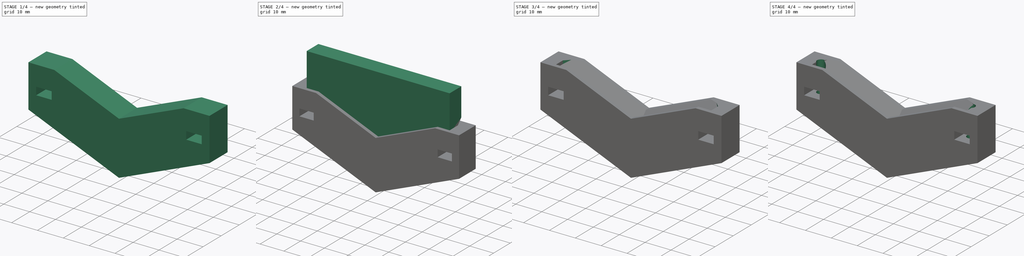
[diagram: build sequence overview — one tinted view per stage of 4, left to right]
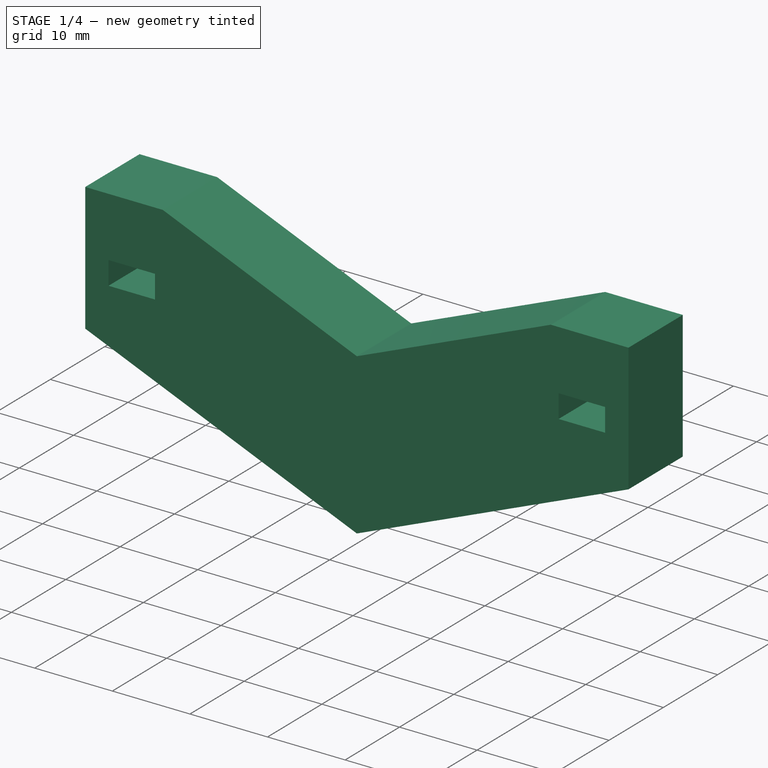
[diagram: stage 1 of 4 — iso view after this stage's code; geometry added in this stage tinted green]
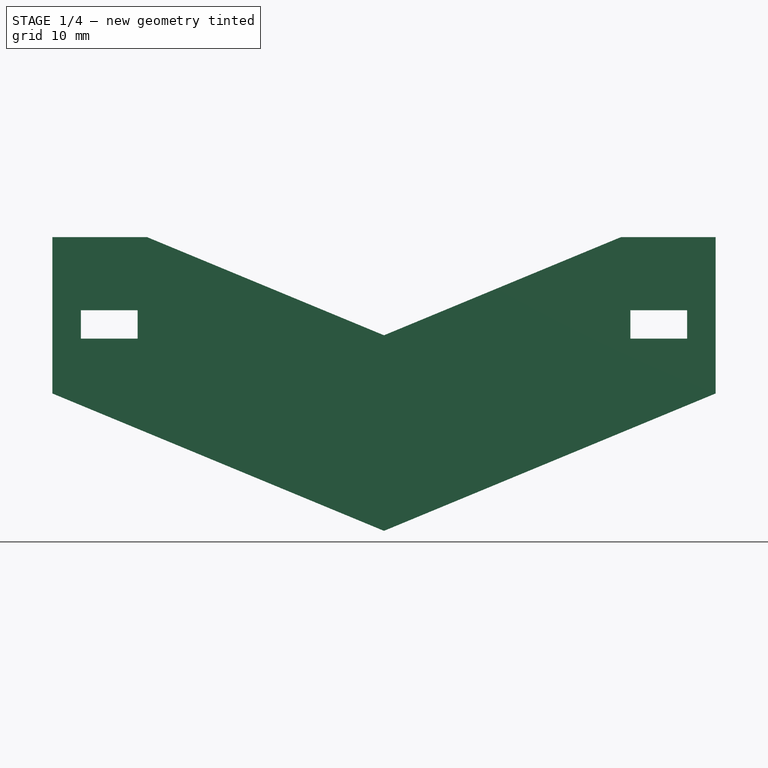
[diagram: stage 1 of 4 — front view after this stage's code; geometry added in this stage tinted green]
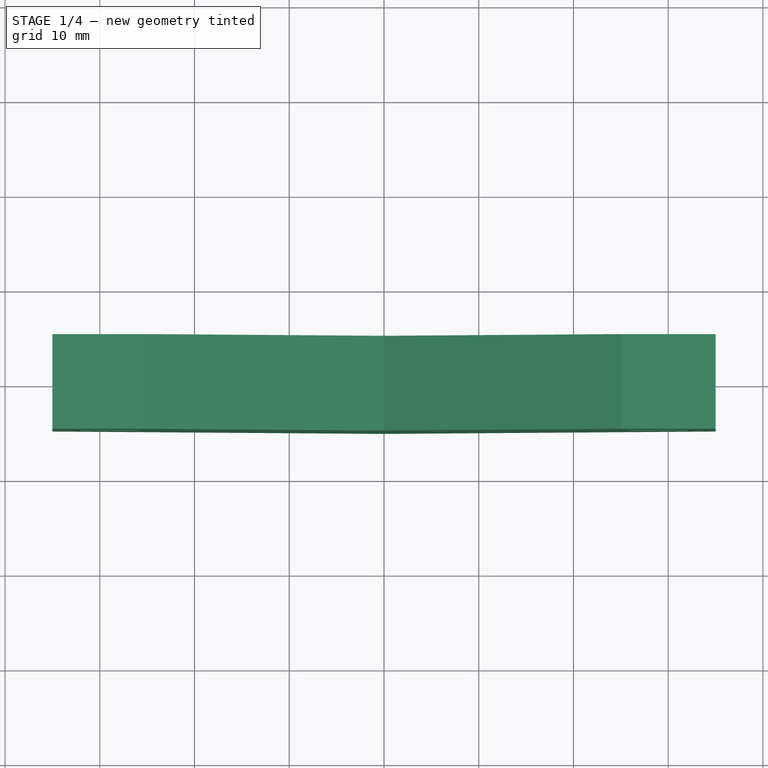
[diagram: stage 1 of 4 — top view after this stage's code; geometry added in this stage tinted green]
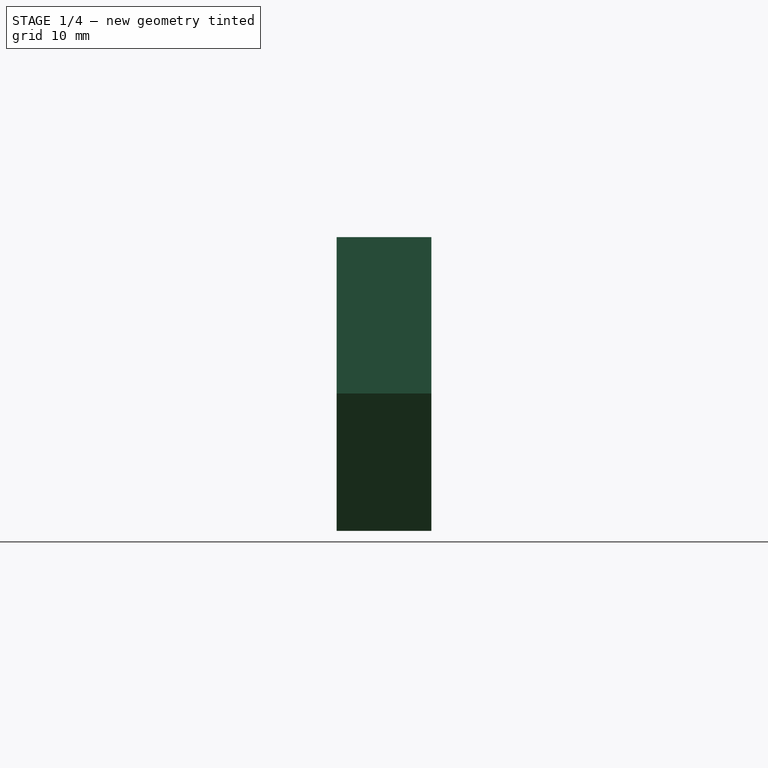
[diagram: stage 1 of 4 — right view after this stage's code; geometry added in this stage tinted green]
FCSTD DOCUMENT  (FreeCAD 0.20R29410 (Git))
Label: LensHolderTop
License: All rights reserved
LicenseURL: http://en.wikipedia.org/wiki/All_rights_reserved
objects: Sketcher::SketchObject×5, PartDesign::Chamfer×4, PartDesign::Pocket×3, PartDesign::Pad×2, PartDesign::Body×2, PartDesign::Boolean×1
note: 26 computed .brp shape members not serialized (recipe doc carries the construction recipe); baked Part::Feature solids carry a one-line shape summary decoded from their .brp

FEATURE [PartDesign::Body] Body001
  Group = -> [Sketch004,Pad001,Chamfer,Chamfer001,Chamfer002,Chamfer003]
  Origin = -> Origin001
  Tip = -> Chamfer003
FEATURE [PartDesign::Pad] Pad
  Direction = (0,-1,2e-16)
  Length = 10
  Length2 = 10
  Midplane = true
  Placement = pos=(0,0,0) rot=(1,0,0;1.5708rad)
  Profile = -> Sketch
  ReferenceAxis = -> Sketch [N_Axis]
  Refine = true
  Type = 0
FEATURE [PartDesign::Pocket] Pocket
  BaseFeature = -> Pad
  Direction = (0,1,2e-16)
  Length = 5
  Length2 = 5
  Midplane = true
  Placement = pos=(0,0,0) rot=(1,0,0;1.5708rad)
  Profile = -> Sketch002
  ReferenceAxis = -> Sketch002 [N_Axis]
  Refine = true
  Type = 1
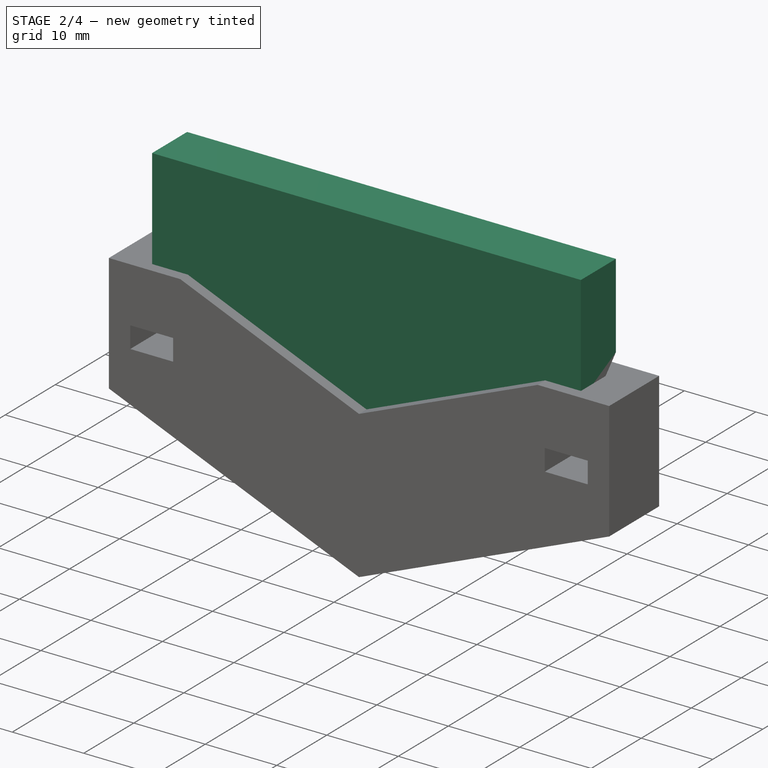
[diagram: stage 2 of 4 — iso view after this stage's code; geometry added in this stage tinted green]
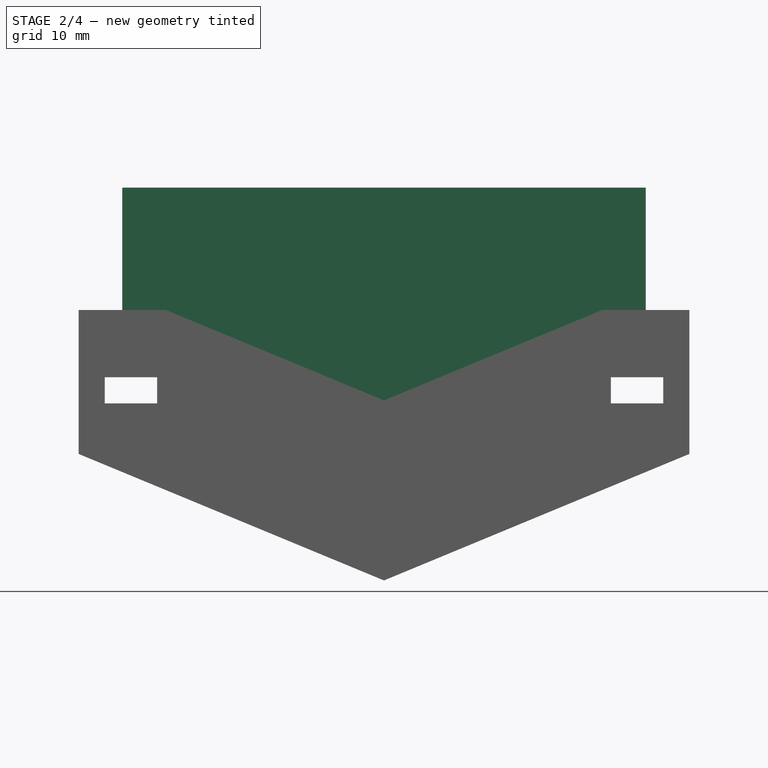
[diagram: stage 2 of 4 — front view after this stage's code; geometry added in this stage tinted green]
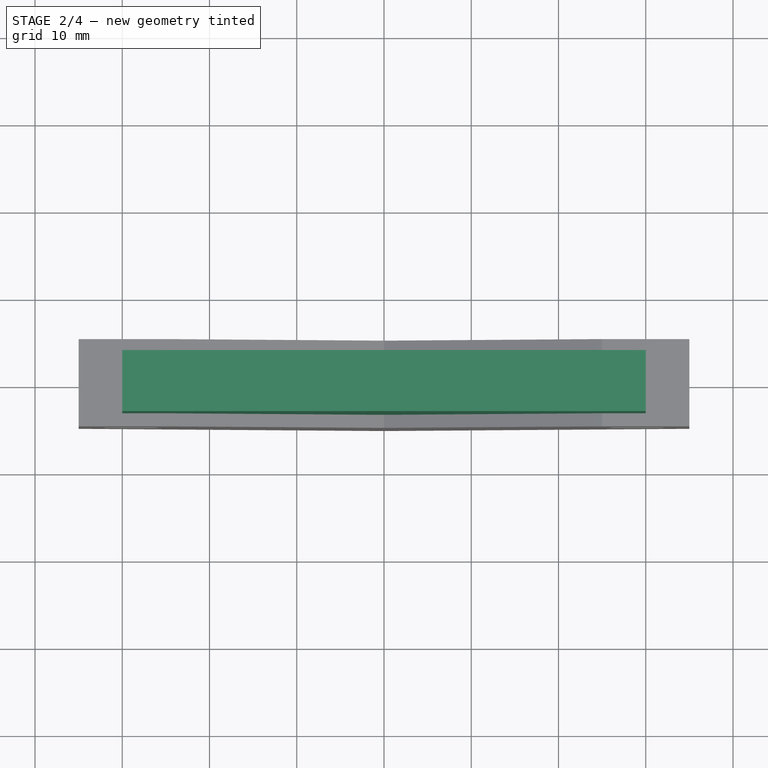
[diagram: stage 2 of 4 — top view after this stage's code; geometry added in this stage tinted green]
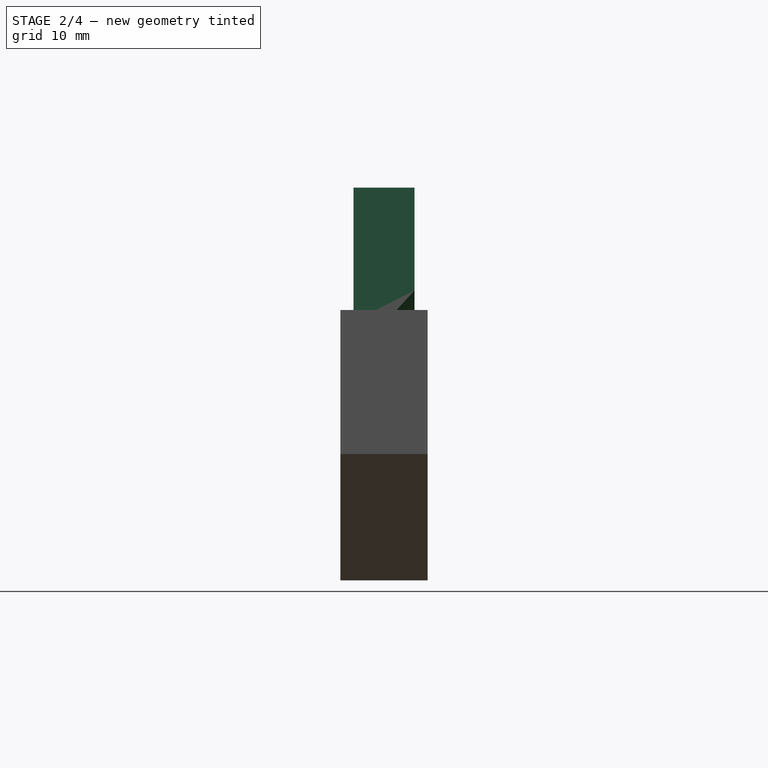
[diagram: stage 2 of 4 — right view after this stage's code; geometry added in this stage tinted green]
FEATURE [Sketcher::SketchObject] Sketch
  FullyConstrained = true
  MapMode = 5
  Placement = pos=(0,0,0) rot=(1,0,0;1.5708rad)
  sketch-geometry (10):
    g0: GeomPoint X=0 Y=45 Z=0
    g1: LineSegment StartX=-35 StartY=33.7075 StartZ=0 EndX=-25 EndY=33.7075 EndZ=0
    g2: LineSegment StartX=-25 StartY=33.7075 StartZ=0 EndX=0 EndY=23.3522 EndZ=0
    g3: LineSegment StartX=0 StartY=23.3522 StartZ=0 EndX=25 EndY=33.7075 EndZ=0
    g4: LineSegment StartX=25 StartY=33.7075 StartZ=0 EndX=35 EndY=33.7075 EndZ=0
    g5: Circle CenterX=0 CenterY=45 CenterZ=0 NormalX=0 NormalY=0 NormalZ=1 AngleXU=0 Radius=20
    g6: LineSegment StartX=-35 StartY=17.2075 StartZ=0 EndX=-35 EndY=33.7075 EndZ=0
    g7: LineSegment StartX=0 StartY=2.71002 StartZ=0 EndX=35 EndY=17.2075 EndZ=0
    g8: LineSegment StartX=35 StartY=17.2075 StartZ=0 EndX=35 EndY=33.7075 EndZ=0
    g9: LineSegment StartX=-35 StartY=17.2075 StartZ=0 EndX=0 EndY=2.71002 EndZ=0
  constraints (26):
    c: PointOnObject(g0,g-2)
    c: DistanceY(g-1,g0) = 45
    c: Horizontal(g1,g4)
    c: Horizontal(g1)
    c: Coincident(g1,g2)
    c: Coincident(g2,g3)
    c: Coincident(g3,g4)
    c: Coincident(g5,g0)
    c: Diameter(g5) = 40  'Lens'
    c: PointOnObject(g2,g-2)
    c: Tangent(g3,g5)
    c: DistanceX(g1,g3) = 50
    c: Angle(g3,g2) = 2.35619
    c: Symmetric(g3,g1,g-2)
    c: Coincident(g6,g1)
    c: Coincident(g7,g8)
    c: Coincident(g8,g4)
    c: Vertical(g8)
    c: Vertical(g6)
    c: Symmetric(g7,g6,g-2)
    c: Distance(g8) = 16.5
    c: Coincident(g9,g6)
    c: Coincident(g9,g7)
    c: PointOnObject(g7,g-2)
    c: Parallel(g3,g7)
    c: DistanceX(g1,g4) = 70
FEATURE [Sketcher::SketchObject] Sketch002  label="SketchNutCapture"
  FullyConstrained = true
  MapMode = 5
  Placement = pos=(0,0,0) rot=(1,0,0;1.5708rad)
  Support = -> [XZ_Plane]
  sketch-geometry (13):
    g0: LineSegment StartX=-12.5 StartY=-5.08223 StartZ=0 EndX=12.5 EndY=-5.08223 EndZ=0
    g1: LineSegment StartX=12.5 StartY=-2.61907 StartZ=0 EndX=12.5 EndY=-16.2522 EndZ=0
    g2: LineSegment StartX=-12.5 StartY=-2.55511 StartZ=0 EndX=-12.5 EndY=-17.2223 EndZ=0
    g3: LineSegment StartX=-32 StartY=26 StartZ=0 EndX=-26 EndY=26 EndZ=0
    g4: LineSegment StartX=-26 StartY=26 StartZ=0 EndX=-26 EndY=23 EndZ=0
    g5: LineSegment StartX=-26 StartY=23 StartZ=0 EndX=-32 EndY=23 EndZ=0
    g6: LineSegment StartX=-32 StartY=23 StartZ=0 EndX=-32 EndY=26 EndZ=0
    g7: LineSegment StartX=26 StartY=26 StartZ=0 EndX=32 EndY=26 EndZ=0
    g8: LineSegment StartX=32 StartY=26 StartZ=0 EndX=32 EndY=23 EndZ=0
    g9: LineSegment StartX=32 StartY=23 StartZ=0 EndX=26 EndY=23 EndZ=0
    g10: LineSegment StartX=26 StartY=23 StartZ=0 EndX=26 EndY=26 EndZ=0
    g11: LineSegment StartX=-25 StartY=-3.61053 StartZ=0 EndX=25 EndY=-3.61053 EndZ=0
    g12: LineSegment StartX=-35 StartY=-1.87304 StartZ=0 EndX=35 EndY=-1.87304 EndZ=0
  constraints (36):
    c: DistanceX(g0,g0) = 25
    c: Symmetric(g0,g0,g-2)
    c: PointOnObject(g0,g1)
    c: PointOnObject(g0,g2)
    c: Block(g2)
    c: Block(g1)
    c: Block(g0)
    c: Coincident(g3,g4)
    c: Coincident(g4,g5)
    c: Coincident(g5,g6)
    c: Coincident(g6,g3)
    c: Horizontal(g3)
    c: Horizontal(g5)
    c: Vertical(g4)
    c: Vertical(g6)
    c: Coincident(g7,g8)
    c: Coincident(g8,g9)
    c: Coincident(g9,g10)
    c: Coincident(g10,g7)
    c: Horizontal(g7)
    c: Horizontal(g9)
    c: Vertical(g8)
    c: Vertical(g10)
    c: Distance(g9) = 6
    c: Distance(g10) = 3
    c: Distance(g11) = 50
    c: Symmetric(g11,g11,g-2)
    c: Equal(g7,g3)
    c: Equal(g10,g4)
    c: Distance(g12) = 70
    c: Symmetric(g12,g12,g-2)
    c: Symmetric(g7,g3,g-2)
    c: DistanceX(g11,g9) = 1
    c: DistanceY(g-1,g8) = 23
    c: Block(g12)
    c: Block(g11)
FEATURE [Sketcher::SketchObject] Sketch004
  FullyConstrained = true
  MapMode = 5
  Placement = pos=(0,0,0) rot=(1,0,0;1.5708rad)
  Support = -> [XZ_Plane001]
  sketch-geometry (5):
    g0: LineSegment StartX=-30 StartY=32.4264 StartZ=0 EndX=0 EndY=20 EndZ=0
    g1: LineSegment StartX=0 StartY=20 StartZ=0 EndX=30 EndY=32.4264 EndZ=0
    g2: LineSegment StartX=30 StartY=32.4264 StartZ=0 EndX=30 EndY=47.7364 EndZ=0
    g3: LineSegment StartX=30 StartY=47.7364 StartZ=0 EndX=-30 EndY=47.7364 EndZ=0
    g4: LineSegment StartX=-30 StartY=47.7364 StartZ=0 EndX=-30 EndY=32.4264 EndZ=0
  constraints (14):
    c: Coincident(g0,g1)
    c: Coincident(g1,g2)
    c: Vertical(g2)
    c: Coincident(g2,g3)
    c: Horizontal(g3)
    c: Coincident(g3,g4)
    c: Coincident(g4,g0)
    c: Vertical(g4)
    c: Angle(g1,g0) = 2.35619
    c: Symmetric(g1,g0,g-2)
    c: PointOnObject(g0,g-2)
    c: DistanceX(g3,g2) = 60
    c: DistanceY(g-1,g0) = 20
    c: DistanceY(g2,g2) = 15.31
FEATURE [PartDesign::Pad] Pad001
  Direction = (0,-1,2e-16)
  Length = 7
  Length2 = 10
  Midplane = true
  Placement = pos=(0,0,0) rot=(1,0,0;1.5708rad)
  Profile = -> Sketch004
  ReferenceAxis = -> Sketch004 [N_Axis]
  Refine = true
  Type = 0
FEATURE [PartDesign::Chamfer] Chamfer
  Angle = 45
  Base = -> Pad001 [Edge6]
  BaseFeature = -> Pad001
  ChamferType = 0
  FlipDirection = false
  Placement = pos=(0,0,0) rot=(1,0,0;1.5708rad)
  Refine = true
  Size = 3.25
  Size2 = 1
  SupportTransform = false
  UseAllEdges = false
FEATURE [PartDesign::Chamfer] Chamfer001
  Angle = 45
  Base = -> Chamfer [Edge4]
  BaseFeature = -> Chamfer
  ChamferType = 0
  FlipDirection = false
  Placement = pos=(0,0,0) rot=(1,0,0;1.5708rad)
  Refine = true
  Size = 3.25
  Size2 = 1
  SupportTransform = false
  UseAllEdges = false
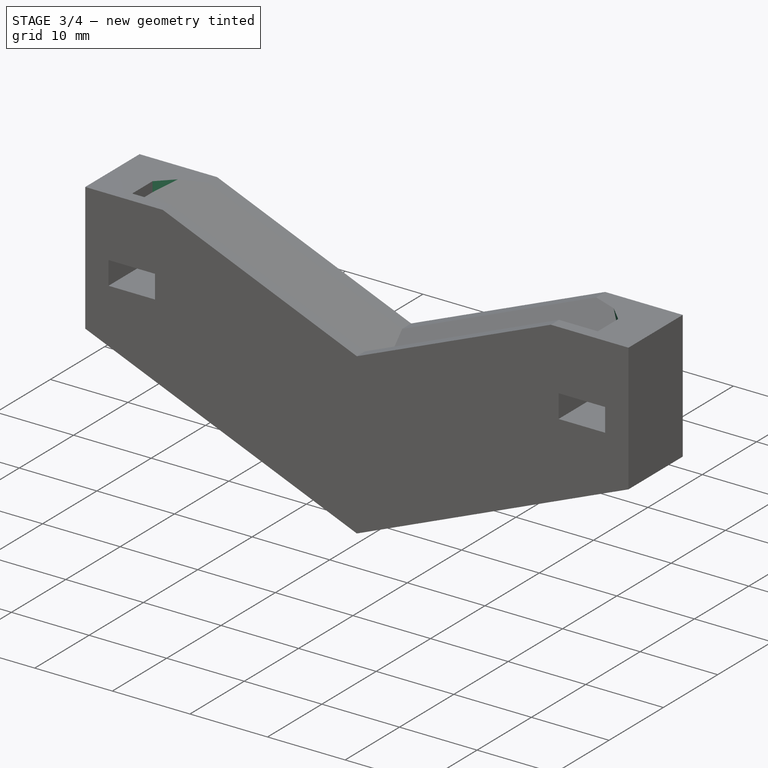
[diagram: stage 3 of 4 — iso view after this stage's code; geometry added in this stage tinted green]
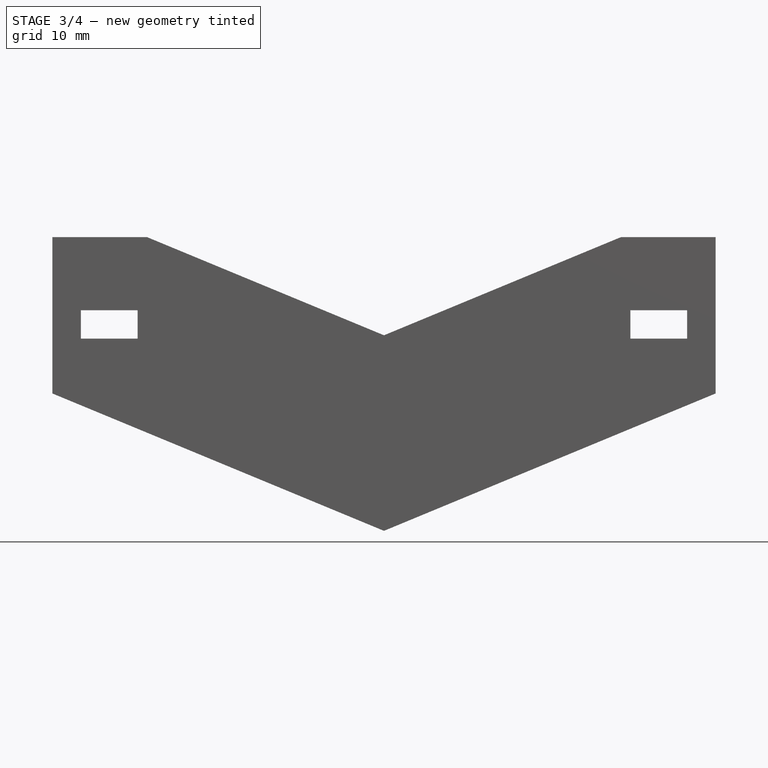
[diagram: stage 3 of 4 — front view after this stage's code; geometry added in this stage tinted green]
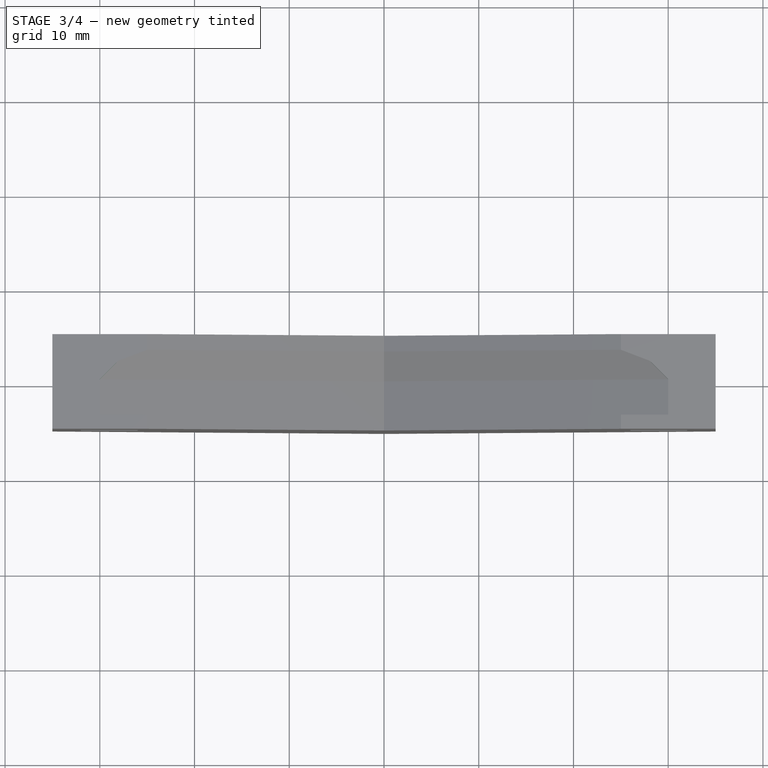
[diagram: stage 3 of 4 — top view after this stage's code; geometry added in this stage tinted green]
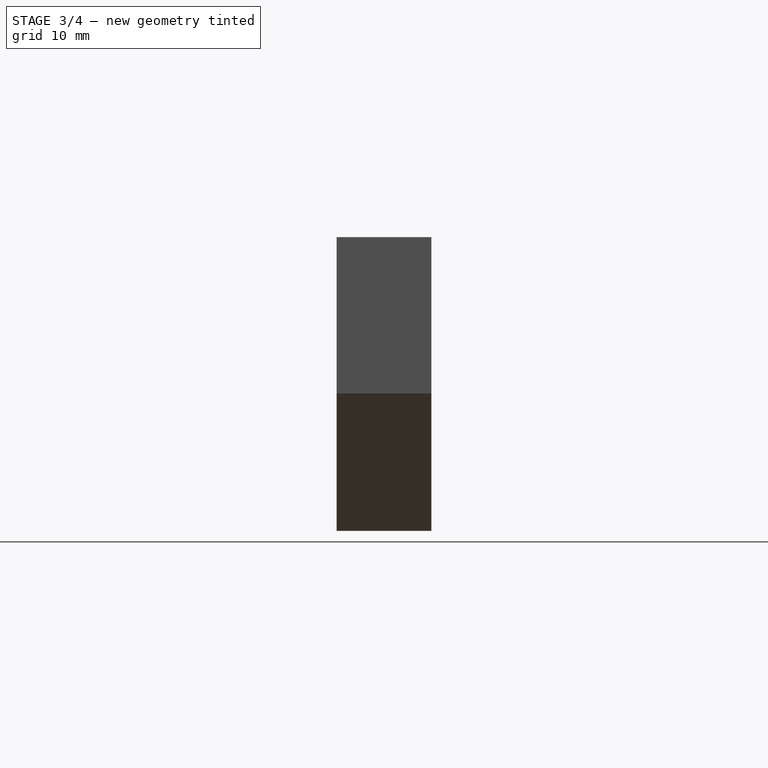
[diagram: stage 3 of 4 — right view after this stage's code; geometry added in this stage tinted green]
FEATURE [PartDesign::Chamfer] Chamfer002
  Angle = 45
  Base = -> Chamfer001 [Edge7]
  BaseFeature = -> Chamfer001
  ChamferType = 0
  FlipDirection = false
  Placement = pos=(0,0,0) rot=(1,0,0;1.5708rad)
  Refine = true
  Size = 3.25
  Size2 = 1
  SupportTransform = false
  UseAllEdges = false
FEATURE [PartDesign::Chamfer] Chamfer003
  Angle = 45
  Base = -> Chamfer002 [Edge18]
  BaseFeature = -> Chamfer002
  ChamferType = 0
  FlipDirection = false
  Placement = pos=(0,0,0) rot=(1,0,0;1.5708rad)
  Refine = true
  Size = 3.25
  Size2 = 1
  SupportTransform = false
  UseAllEdges = false
FEATURE [PartDesign::Boolean] Boolean
  BaseFeature = -> Pocket
  Group = -> [Body001]
  Refine = true
  Type = 1
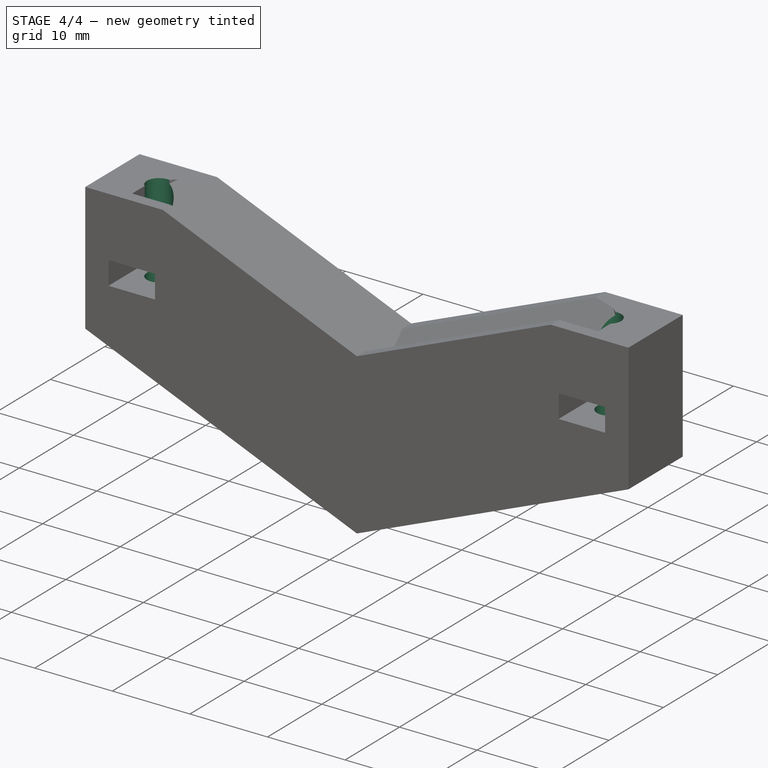
[diagram: stage 4 of 4 — iso view after this stage's code; geometry added in this stage tinted green]
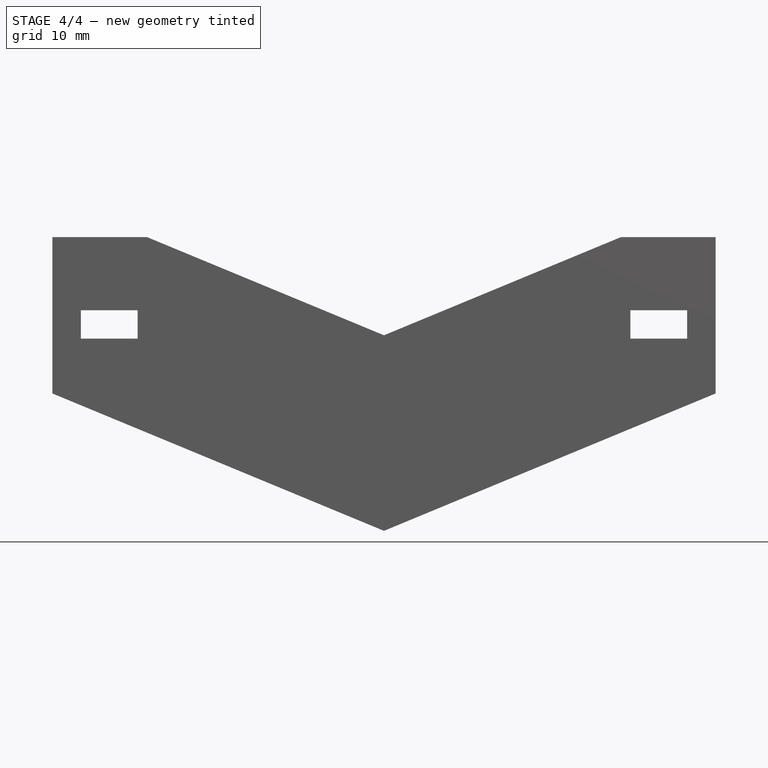
[diagram: stage 4 of 4 — front view after this stage's code; geometry added in this stage tinted green]
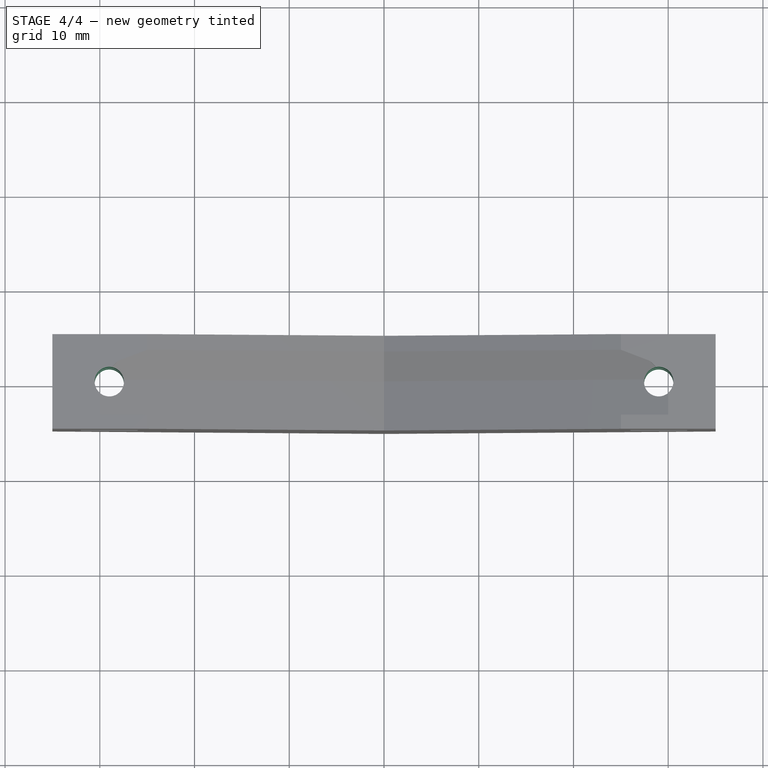
[diagram: stage 4 of 4 — top view after this stage's code; geometry added in this stage tinted green]
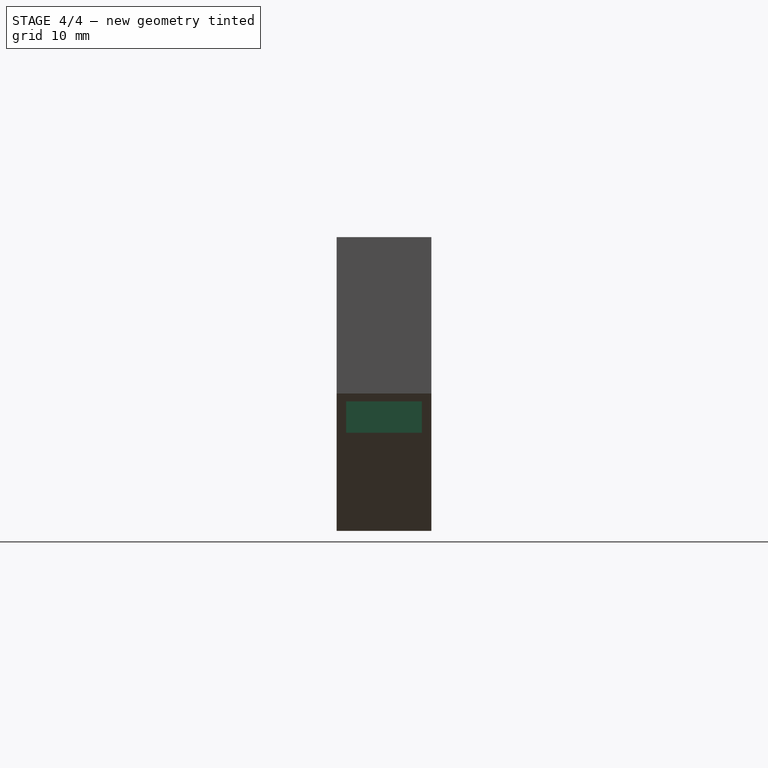
[diagram: stage 4 of 4 — right view after this stage's code; geometry added in this stage tinted green]
FEATURE [Sketcher::SketchObject] Sketch005
  FullyConstrained = true
  MapMode = 5
  Support = -> [XY_Plane]
  sketch-geometry (2):
    g0: Circle CenterX=-29 CenterY=0 CenterZ=0 NormalX=0 NormalY=0 NormalZ=1 AngleXU=0 Radius=1.55
    g1: Circle CenterX=29 CenterY=0 CenterZ=0 NormalX=0 NormalY=0 NormalZ=1 AngleXU=0 Radius=1.55
  constraints (5):
    c: PointOnObject(g0,g-1)
    c: Equal(g0,g1)
    c: Diameter(g1) = 3.1
    c: Symmetric(g1,g0,g-2)
    c: Distance(g-1,g1) = 29
FEATURE [PartDesign::Pocket] Pocket002
  BaseFeature = -> Boolean
  Direction = (0,0,1)
  Length = 5
  Length2 = 5
  Profile = -> Sketch005
  ReferenceAxis = -> Sketch005 [N_Axis]
  Refine = true
  Type = 1
  UseCustomVector = true
FEATURE [Sketcher::SketchObject] Sketch006
  FullyConstrained = true
  MapMode = 5
  Support = -> [XY_Plane]
  sketch-geometry (9):
    g0: LineSegment StartX=-33 StartY=4 StartZ=0 EndX=-25 EndY=4 EndZ=0
    g1: LineSegment StartX=-25 StartY=4 StartZ=0 EndX=-25 EndY=-4 EndZ=0
    g2: LineSegment StartX=-25 StartY=-4 StartZ=0 EndX=-33 EndY=-4 EndZ=0
    g3: LineSegment StartX=-33 StartY=-4 StartZ=0 EndX=-33 EndY=4 EndZ=0
    g4: LineSegment StartX=25 StartY=4 StartZ=0 EndX=33 EndY=4 EndZ=0
    g5: LineSegment StartX=33 StartY=4 StartZ=0 EndX=33 EndY=-4 EndZ=0
    g6: LineSegment StartX=33 StartY=-4 StartZ=0 EndX=25 EndY=-4 EndZ=0
    g7: LineSegment StartX=25 StartY=-4 StartZ=0 EndX=25 EndY=4 EndZ=0
    g8: LineSegment StartX=29 StartY=21.0052 StartZ=0 EndX=29 EndY=-24.1672 EndZ=0
  constraints (24):
    c: Coincident(g0,g1)
    c: Coincident(g1,g2)
    c: Coincident(g2,g3)
    c: Coincident(g3,g0)
    c: Horizontal(g0)
    c: Horizontal(g2)
    c: Vertical(g1)
    c: Vertical(g3)
    c: Coincident(g4,g5)
    c: Coincident(g5,g6)
    c: Coincident(g6,g7)
    c: Coincident(g7,g4)
    c: Horizontal(g4)
    c: Horizontal(g6)
    c: Vertical(g7)
    c: DistanceX(g-1,g8) = 29
    c: Distance(g5) = 8
    c: Distance(g6) = 8
    c: Symmetric(g4,g4,g8)
    c: Symmetric(g4,g5,g-1)
    c: Equal(g6,g2)
    c: Equal(g1,g5)
    c: Symmetric(g6,g1,g-2)
    c: Block(g8)
FEATURE [PartDesign::Pocket] Pocket003
  BaseFeature = -> Pocket002
  Direction = (0,0,1)
  Length = 17
  Length2 = 5
  Profile = -> Sketch006
  ReferenceAxis = -> Sketch006 [N_Axis]
  Refine = true
  Type = 0
  UseCustomVector = true
FEATURE [PartDesign::Body] Body
  Group = -> [Sketch,Sketch002,Pad,Pocket,Boolean,Sketch005,Pocket002,Sketch006,Pocket003]
  Origin = -> Origin
  Tip = -> Pocket003
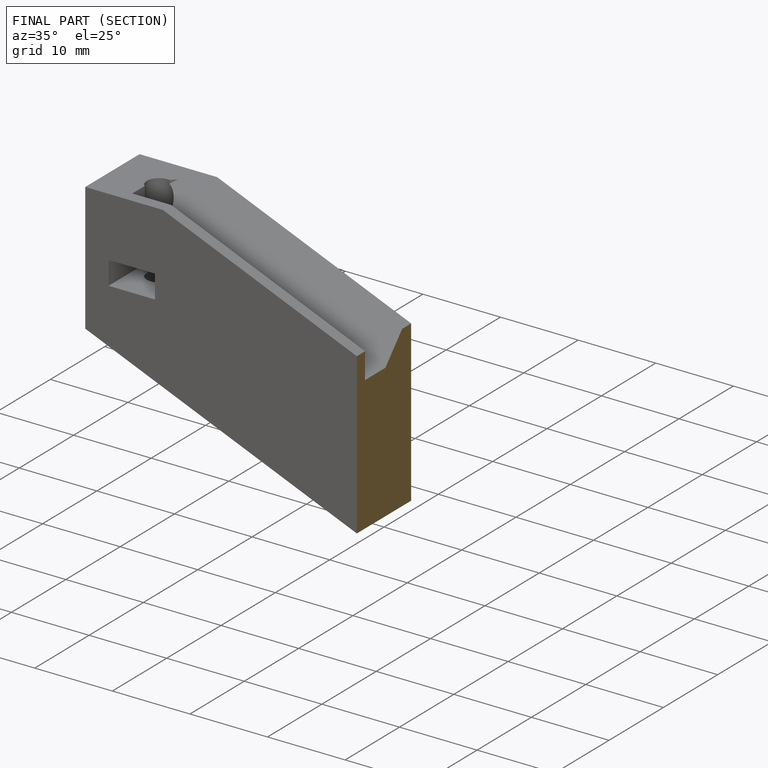
[diagram: finished part — half-section view (interior)]
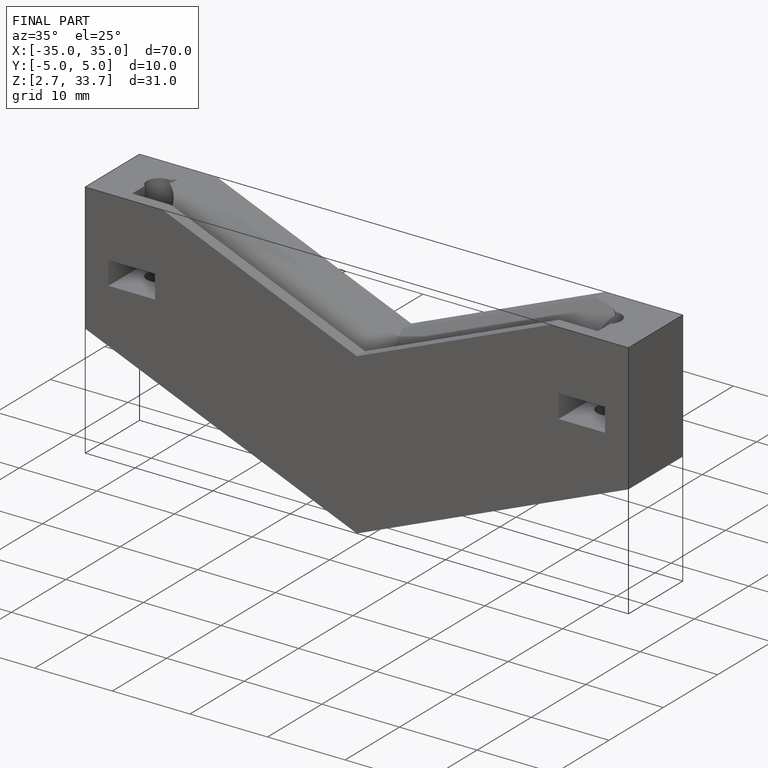
[diagram: finished part — iso view with bounding-box wireframe]
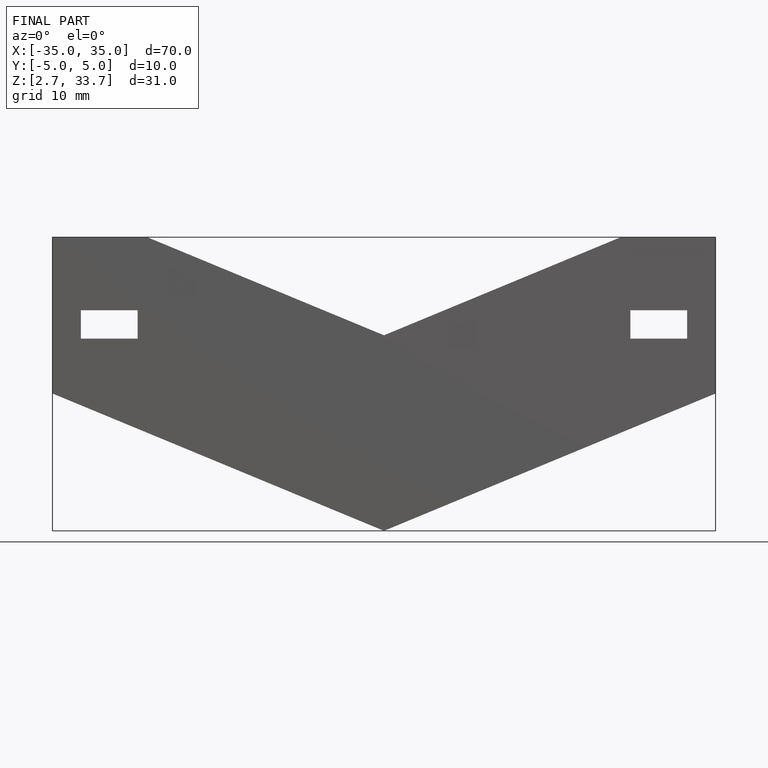
[diagram: finished part — front view with bounding-box wireframe]
